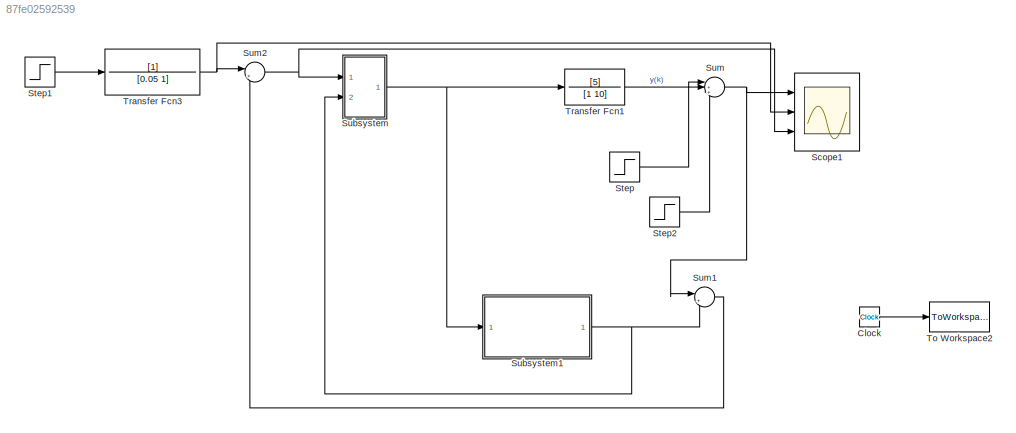
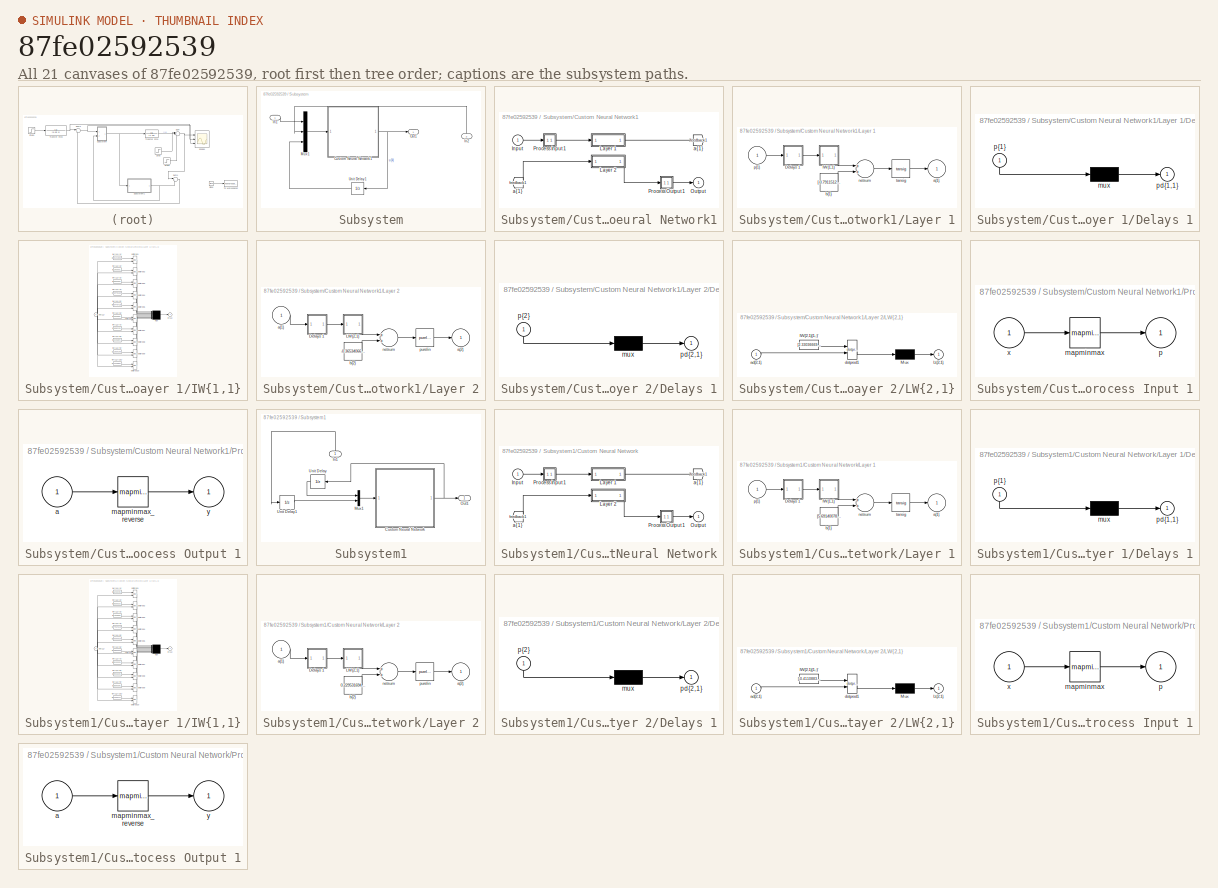
[diagram: thumbnail index - all 21 canvases of the model, root first then tree order]
MODEL slx_87fe02592539
KIND model
CONFIG AbsTol = auto
CONFIG FixedStep = auto
CONFIG MaxStep = auto
CONFIG MinStep = auto
CONFIG RelTol = 1e-3
CONFIG SampleTimeConstraint = Unconstrained
CONFIG Solver = VariableStepAuto
CONFIG SolverMode = Auto
CONFIG SolverName = VariableStepAuto
CONFIG StartTime = 0.0
CONFIG StopTime = 2
BLOCK [Clock] Clock
BLOCK [Scope] Scope1
  NumInputPorts = 3
  Ports = [3]
  ScopeSpecificationString = Simulink.scopes.TimeScopeBlockCfg('CurrentConfiguration', extmgr.ConfigurationSet(extmgr.Configuration('Core','General UI',true),extmgr.Configuration('Core','Source UI',true),extmgr.Configuration('Sources','WiredSimulink',true,'DataLoggingVariableName','ScopeData1'),extmgr.Configuration('Visuals','Time Domain',true,'SerializedDisplays',{struct('MinYLimReal','-0.14376','MaxYLimReal','1.29381','YLab...<+1386ch>
BLOCK [Step] Step
  After = 0.1
  SampleTime = 0
BLOCK [Step] Step1
  SampleTime = 0
  Time = 0
BLOCK [Step] Step2
  After = 0.15
  SampleTime = 0
  Time = 1.5
BLOCK [SubSystem] Subsystem
  Ports = [2, 1]
  RequestExecContextInheritance = off
  Variant = off
BLOCK [SubSystem] Subsystem/Custom Neural Network1
  Ports = [1, 1]
  RequestExecContextInheritance = off
  Variant = off
BLOCK [From] Subsystem/Custom Neural Network1/ a{1} 
  GotoTag = feedback1
BLOCK [Inport] Subsystem/Custom Neural Network1/Input
  IconDisplay = Port number
  PortDimensions = 3
  SampleTime = 0.01
BLOCK [SubSystem] Subsystem/Custom Neural Network1/Layer 1
  Ports = [1, 1]
  RequestExecContextInheritance = off
  Variant = off
BLOCK [SubSystem] Subsystem/Custom Neural Network1/Layer 1/Delays 1
  Ports = [1, 1]
  RequestExecContextInheritance = off
  Variant = off
BLOCK [Mux] Subsystem/Custom Neural Network1/Layer 1/Delays 1/mux
  Inputs = 1
  Ports = [1, 1]
BLOCK [Outport] Subsystem/Custom Neural Network1/Layer 1/Delays 1/pd{1,1}
  IconDisplay = Port number
BLOCK [Inport] Subsystem/Custom Neural Network1/Layer 1/Delays 1/p{1}
  IconDisplay = Port number
  PortDimensions = 3
  SampleTime = 0.01
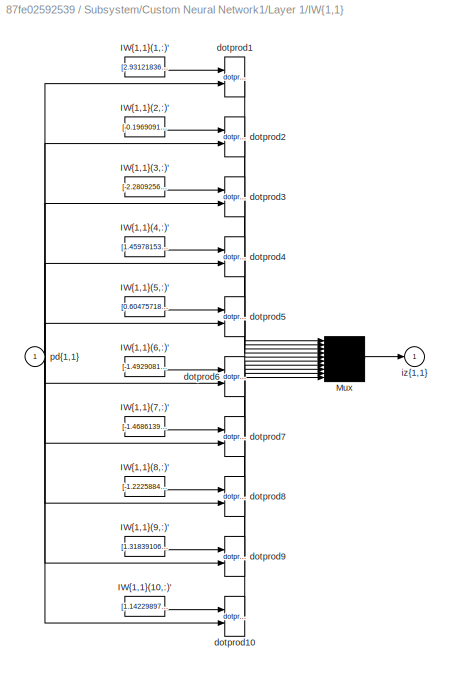
BLOCK [SubSystem] Subsystem/Custom Neural Network1/Layer 1/IW{1,1}
  Ports = [1, 1]
  RequestExecContextInheritance = off
  Variant = off
BLOCK [Constant] Subsystem/Custom Neural Network1/Layer 1/IW{1,1}/IW{1,1}(1,:)'
  Value = [2.9312183687244997;-2.6523224516003663;0.00016887138870012047]
BLOCK [Constant] Subsystem/Custom Neural Network1/Layer 1/IW{1,1}/IW{1,1}(10,:)'
  Value = [1.1422989777888193;1.7281322058882225;-2.0073079651672745]
BLOCK [Constant] Subsystem/Custom Neural Network1/Layer 1/IW{1,1}/IW{1,1}(2,:)'
  Value = [-0.19690918930727488;1.1965621524025662;-2.0941956846009111]
BLOCK [Constant] Subsystem/Custom Neural Network1/Layer 1/IW{1,1}/IW{1,1}(3,:)'
  Value = [-2.2809256082089187;2.0638335102510661;0.00010241684315486009]
BLOCK [Constant] Subsystem/Custom Neural Network1/Layer 1/IW{1,1}/IW{1,1}(4,:)'
  Value = [1.459781531977852;0.41746532694940303;2.3699683866366774]
BLOCK [Constant] Subsystem/Custom Neural Network1/Layer 1/IW{1,1}/IW{1,1}(5,:)'
  Value = [0.60475718569245596;2.1560222526817681;1.6814134608677849]
BLOCK [Constant] Subsystem/Custom Neural Network1/Layer 1/IW{1,1}/IW{1,1}(6,:)'
  Value = [-1.4929081662989734;-2.1219788609396613;1.8487524179333028]
BLOCK [Constant] Subsystem/Custom Neural Network1/Layer 1/IW{1,1}/IW{1,1}(7,:)'
  Value = [-1.4686139931530604;-1.2618973654736712;2.590422913848053]
BLOCK [Constant] Subsystem/Custom Neural Network1/Layer 1/IW{1,1}/IW{1,1}(8,:)'
  Value = [-1.2225884385918298;2.0682740886611004;-0.50820142916595679]
BLOCK [Constant] Subsystem/Custom Neural Network1/Layer 1/IW{1,1}/IW{1,1}(9,:)'
  Value = [1.3183910656045181;-0.059130748089273232;0.28148329812596873]
BLOCK [Mux] Subsystem/Custom Neural Network1/Layer 1/IW{1,1}/Mux
  Inputs = 10
  Ports = [10, 1]
BLOCK [Reference] Subsystem/Custom Neural Network1/Layer 1/IW{1,1}/dotprod1  REF=neural/Weight Functions/dotprod
  Ports = [2, 1]
  SourceBlock = neural/Weight Functions/dotprod
  SourceType = DOTPROD
BLOCK [Reference] Subsystem/Custom Neural Network1/Layer 1/IW{1,1}/dotprod10  REF=neural/Weight Functions/dotprod
  Ports = [2, 1]
  SourceBlock = neural/Weight Functions/dotprod
  SourceType = DOTPROD
BLOCK [Reference] Subsystem/Custom Neural Network1/Layer 1/IW{1,1}/dotprod2  REF=neural/Weight Functions/dotprod
  Ports = [2, 1]
  SourceBlock = neural/Weight Functions/dotprod
  SourceType = DOTPROD
BLOCK [Reference] Subsystem/Custom Neural Network1/Layer 1/IW{1,1}/dotprod3  REF=neural/Weight Functions/dotprod
  Ports = [2, 1]
  SourceBlock = neural/Weight Functions/dotprod
  SourceType = DOTPROD
BLOCK [Reference] Subsystem/Custom Neural Network1/Layer 1/IW{1,1}/dotprod4  REF=neural/Weight Functions/dotprod
  Ports = [2, 1]
  SourceBlock = neural/Weight Functions/dotprod
  SourceType = DOTPROD
BLOCK [Reference] Subsystem/Custom Neural Network1/Layer 1/IW{1,1}/dotprod5  REF=neural/Weight Functions/dotprod
  Ports = [2, 1]
  SourceBlock = neural/Weight Functions/dotprod
  SourceType = DOTPROD
BLOCK [Reference] Subsystem/Custom Neural Network1/Layer 1/IW{1,1}/dotprod6  REF=neural/Weight Functions/dotprod
  Ports = [2, 1]
  SourceBlock = neural/Weight Functions/dotprod
  SourceType = DOTPROD
BLOCK [Reference] Subsystem/Custom Neural Network1/Layer 1/IW{1,1}/dotprod7  REF=neural/Weight Functions/dotprod
  Ports = [2, 1]
  SourceBlock = neural/Weight Functions/dotprod
  SourceType = DOTPROD
BLOCK [Reference] Subsystem/Custom Neural Network1/Layer 1/IW{1,1}/dotprod8  REF=neural/Weight Functions/dotprod
  Ports = [2, 1]
  SourceBlock = neural/Weight Functions/dotprod
  SourceType = DOTPROD
BLOCK [Reference] Subsystem/Custom Neural Network1/Layer 1/IW{1,1}/dotprod9  REF=neural/Weight Functions/dotprod
  Ports = [2, 1]
  SourceBlock = neural/Weight Functions/dotprod
  SourceType = DOTPROD
BLOCK [Outport] Subsystem/Custom Neural Network1/Layer 1/IW{1,1}/iz{1,1}
  IconDisplay = Port number
BLOCK [Inport] Subsystem/Custom Neural Network1/Layer 1/IW{1,1}/pd{1,1}
  IconDisplay = Port number
  PortDimensions = 3
  SampleTime = 0.01
BLOCK [Outport] Subsystem/Custom Neural Network1/Layer 1/a{1}
  IconDisplay = Port number
  InitialOutput = [0;0;0;0;0;0;0;0;0;0]
BLOCK [Constant] Subsystem/Custom Neural Network1/Layer 1/b{1}
  Value = [-0.79115128125811007;-1.9337945836067258;-0.5473650312659869;-1.6269390435302586;0.048897025808087316;0.0514540105732934;-1.1316769452128337;2.197388334475511;1.9746659341742681;2.8967679492991771]
BLOCK [Sum] Subsystem/Custom Neural Network1/Layer 1/netsum
  Inputs = 2
  Ports = [2, 1]
BLOCK [Inport] Subsystem/Custom Neural Network1/Layer 1/p{1}
  IconDisplay = Port number
  PortDimensions = 3
  SampleTime = 0.01
BLOCK [Reference] Subsystem/Custom Neural Network1/Layer 1/tansig  REF=neural/Transfer Functions/tansig
  Ports = [1, 1]
  SourceBlock = neural/Transfer Functions/tansig
  SourceType = TANSIG
BLOCK [SubSystem] Subsystem/Custom Neural Network1/Layer 2
  Ports = [1, 1]
  RequestExecContextInheritance = off
  Variant = off
BLOCK [SubSystem] Subsystem/Custom Neural Network1/Layer 2/Delays 1
  Ports = [1, 1]
  RequestExecContextInheritance = off
  Variant = off
BLOCK [Mux] Subsystem/Custom Neural Network1/Layer 2/Delays 1/mux
  Inputs = 1
  Ports = [1, 1]
BLOCK [Outport] Subsystem/Custom Neural Network1/Layer 2/Delays 1/pd{2,1}
  IconDisplay = Port number
BLOCK [Inport] Subsystem/Custom Neural Network1/Layer 2/Delays 1/p{2}
  IconDisplay = Port number
  PortDimensions = 10
  SampleTime = 0.01
BLOCK [SubSystem] Subsystem/Custom Neural Network1/Layer 2/LW{2,1}
  Ports = [1, 1]
  RequestExecContextInheritance = off
  Variant = off
BLOCK [Constant] Subsystem/Custom Neural Network1/Layer 2/LW{2,1}/IW{2,1}(1,:)'
  Value = [2.3303666965877166;-0.00011010168066328738;-3.8345615339103638;8.2699491761283593e-06;6.7304755977757016e-05;-2.0499242289539555e-05;-0.00017263788153415186;-0.0093235438979685416;0.00053675787748195907;0.00080907691753430661]
BLOCK [Mux] Subsystem/Custom Neural Network1/Layer 2/LW{2,1}/Mux
  Inputs = 1
  Ports = [1, 1]
BLOCK [Inport] Subsystem/Custom Neural Network1/Layer 2/LW{2,1}/ad{2,1}
  IconDisplay = Port number
  PortDimensions = 10
  SampleTime = 0.01
BLOCK [Reference] Subsystem/Custom Neural Network1/Layer 2/LW{2,1}/dotprod1  REF=neural/Weight Functions/dotprod
  Ports = [2, 1]
  SourceBlock = neural/Weight Functions/dotprod
  SourceType = DOTPROD
BLOCK [Outport] Subsystem/Custom Neural Network1/Layer 2/LW{2,1}/lz{2,1}
  IconDisplay = Port number
BLOCK [Inport] Subsystem/Custom Neural Network1/Layer 2/a{1} 
  IconDisplay = Port number
  PortDimensions = 10
  SampleTime = 0.01
BLOCK [Outport] Subsystem/Custom Neural Network1/Layer 2/a{2}
  IconDisplay = Port number
  InitialOutput = 0
BLOCK [Constant] Subsystem/Custom Neural Network1/Layer 2/b{2}
  Value = -0.3653406685777541
BLOCK [Sum] Subsystem/Custom Neural Network1/Layer 2/netsum
  Inputs = 2
  Ports = [2, 1]
BLOCK [Reference] Subsystem/Custom Neural Network1/Layer 2/purelin  REF=neural/Transfer Functions/purelin
  Ports = [1, 1]
  SourceBlock = neural/Transfer Functions/purelin
  SourceType = PURELIN
BLOCK [Outport] Subsystem/Custom Neural Network1/Output
  IconDisplay = Port number
  InitialOutput = 0
BLOCK [SubSystem] Subsystem/Custom Neural Network1/Process Input 1
  Ports = [1, 1]
  RequestExecContextInheritance = off
  Variant = off
BLOCK [Reference] Subsystem/Custom Neural Network1/Process Input 1/mapminmax  REF=neural/Processing Functions/mapminmax
  Ports = [1, 1]
  SourceBlock = neural/Processing Functions/mapminmax
  SourceType = MAPMINMAX Preprocess
BLOCK [Outport] Subsystem/Custom Neural Network1/Process Input 1/p
  IconDisplay = Port number
  PortDimensions = 3
  SampleTime = 0.01
BLOCK [Inport] Subsystem/Custom Neural Network1/Process Input 1/x
  IconDisplay = Port number
  PortDimensions = 3
  SampleTime = 0.01
BLOCK [SubSystem] Subsystem/Custom Neural Network1/Process Output 1
  Ports = [1, 1]
  RequestExecContextInheritance = off
  Variant = off
BLOCK [Inport] Subsystem/Custom Neural Network1/Process Output 1/a
  IconDisplay = Port number
  PortDimensions = 1
  SampleTime = 0.01
BLOCK [Reference] Subsystem/Custom Neural Network1/Process Output 1/mapminmax_reverse  REF=neural/Processing Functions/mapminmax_reverse
  Ports = [1, 1]
  SourceBlock = neural/Processing Functions/mapminmax_reverse
  SourceType = MAPMINMAX Reverse Process
BLOCK [Outport] Subsystem/Custom Neural Network1/Process Output 1/y
  IconDisplay = Port number
  PortDimensions = 1
  SampleTime = 0.01
BLOCK [Goto] Subsystem/Custom Neural Network1/a{1}
  GotoTag = feedback1
BLOCK [Inport] Subsystem/In1
  IconDisplay = Port number
BLOCK [Inport] Subsystem/In2
  IconDisplay = Port number
  Port = 2
BLOCK [Mux] Subsystem/Mux1
  DisplayOption = bar
  Inputs = 3
  Ports = [3, 1]
BLOCK [Outport] Subsystem/Out1
  IconDisplay = Port number
BLOCK [UnitDelay] Subsystem/Unit Delay1
  InputProcessing = Elements as channels (sample based)
  SampleTime = 0.01
BLOCK [SubSystem] Subsystem1
  Ports = [1, 1]
  RequestExecContextInheritance = off
  Variant = off
BLOCK [SubSystem] Subsystem1/Custom Neural Network
  Ports = [1, 1]
  RequestExecContextInheritance = off
  Variant = off
BLOCK [From] Subsystem1/Custom Neural Network/ a{1} 
  GotoTag = feedback1
BLOCK [Inport] Subsystem1/Custom Neural Network/Input
  IconDisplay = Port number
  PortDimensions = 2
  SampleTime = 0.01
BLOCK [SubSystem] Subsystem1/Custom Neural Network/Layer 1
  Ports = [1, 1]
  RequestExecContextInheritance = off
  Variant = off
BLOCK [SubSystem] Subsystem1/Custom Neural Network/Layer 1/Delays 1
  Ports = [1, 1]
  RequestExecContextInheritance = off
  Variant = off
BLOCK [Mux] Subsystem1/Custom Neural Network/Layer 1/Delays 1/mux
  Inputs = 1
  Ports = [1, 1]
BLOCK [Outport] Subsystem1/Custom Neural Network/Layer 1/Delays 1/pd{1,1}
  IconDisplay = Port number
BLOCK [Inport] Subsystem1/Custom Neural Network/Layer 1/Delays 1/p{1}
  IconDisplay = Port number
  PortDimensions = 2
  SampleTime = 0.01
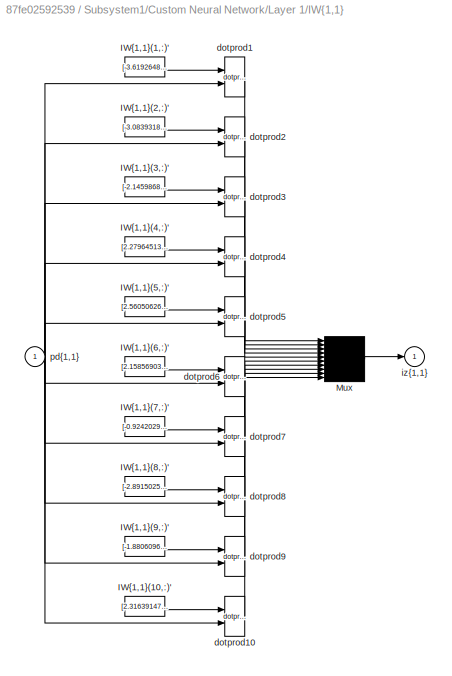
BLOCK [SubSystem] Subsystem1/Custom Neural Network/Layer 1/IW{1,1}
  Ports = [1, 1]
  RequestExecContextInheritance = off
  Variant = off
BLOCK [Constant] Subsystem1/Custom Neural Network/Layer 1/IW{1,1}/IW{1,1}(1,:)'
  Value = [-3.6192648526328948;-0.37925227591307575]
BLOCK [Constant] Subsystem1/Custom Neural Network/Layer 1/IW{1,1}/IW{1,1}(10,:)'
  Value = [2.316391473505885;0.20549533707890807]
BLOCK [Constant] Subsystem1/Custom Neural Network/Layer 1/IW{1,1}/IW{1,1}(2,:)'
  Value = [-3.0839318712497956;-3.2979100307348155]
BLOCK [Constant] Subsystem1/Custom Neural Network/Layer 1/IW{1,1}/IW{1,1}(3,:)'
  Value = [-2.1459868133096105;-0.22399986247240156]
BLOCK [Constant] Subsystem1/Custom Neural Network/Layer 1/IW{1,1}/IW{1,1}(4,:)'
  Value = [2.2796451366028383;0.23851670581771739]
BLOCK [Constant] Subsystem1/Custom Neural Network/Layer 1/IW{1,1}/IW{1,1}(5,:)'
  Value = [2.5605062618193992;0.25985956480889183]
BLOCK [Constant] Subsystem1/Custom Neural Network/Layer 1/IW{1,1}/IW{1,1}(6,:)'
  Value = [2.1585690340746551;3.7857156464579185]
BLOCK [Constant] Subsystem1/Custom Neural Network/Layer 1/IW{1,1}/IW{1,1}(7,:)'
  Value = [-0.92420295254506057;-0.097029704788217624]
BLOCK [Constant] Subsystem1/Custom Neural Network/Layer 1/IW{1,1}/IW{1,1}(8,:)'
  Value = [-2.8915025978063289;-0.19617010246447167]
BLOCK [Constant] Subsystem1/Custom Neural Network/Layer 1/IW{1,1}/IW{1,1}(9,:)'
  Value = [-1.8806096003039952;-3.389900026937787]
BLOCK [Mux] Subsystem1/Custom Neural Network/Layer 1/IW{1,1}/Mux
  Inputs = 10
  Ports = [10, 1]
BLOCK [Reference] Subsystem1/Custom Neural Network/Layer 1/IW{1,1}/dotprod1  REF=neural/Weight Functions/dotprod
  Ports = [2, 1]
  SourceBlock = neural/Weight Functions/dotprod
  SourceType = DOTPROD
BLOCK [Reference] Subsystem1/Custom Neural Network/Layer 1/IW{1,1}/dotprod10  REF=neural/Weight Functions/dotprod
  Ports = [2, 1]
  SourceBlock = neural/Weight Functions/dotprod
  SourceType = DOTPROD
BLOCK [Reference] Subsystem1/Custom Neural Network/Layer 1/IW{1,1}/dotprod2  REF=neural/Weight Functions/dotprod
  Ports = [2, 1]
  SourceBlock = neural/Weight Functions/dotprod
  SourceType = DOTPROD
BLOCK [Reference] Subsystem1/Custom Neural Network/Layer 1/IW{1,1}/dotprod3  REF=neural/Weight Functions/dotprod
  Ports = [2, 1]
  SourceBlock = neural/Weight Functions/dotprod
  SourceType = DOTPROD
BLOCK [Reference] Subsystem1/Custom Neural Network/Layer 1/IW{1,1}/dotprod4  REF=neural/Weight Functions/dotprod
  Ports = [2, 1]
  SourceBlock = neural/Weight Functions/dotprod
  SourceType = DOTPROD
BLOCK [Reference] Subsystem1/Custom Neural Network/Layer 1/IW{1,1}/dotprod5  REF=neural/Weight Functions/dotprod
  Ports = [2, 1]
  SourceBlock = neural/Weight Functions/dotprod
  SourceType = DOTPROD
BLOCK [Reference] Subsystem1/Custom Neural Network/Layer 1/IW{1,1}/dotprod6  REF=neural/Weight Functions/dotprod
  Ports = [2, 1]
  SourceBlock = neural/Weight Functions/dotprod
  SourceType = DOTPROD
BLOCK [Reference] Subsystem1/Custom Neural Network/Layer 1/IW{1,1}/dotprod7  REF=neural/Weight Functions/dotprod
  Ports = [2, 1]
  SourceBlock = neural/Weight Functions/dotprod
  SourceType = DOTPROD
BLOCK [Reference] Subsystem1/Custom Neural Network/Layer 1/IW{1,1}/dotprod8  REF=neural/Weight Functions/dotprod
  Ports = [2, 1]
  SourceBlock = neural/Weight Functions/dotprod
  SourceType = DOTPROD
BLOCK [Reference] Subsystem1/Custom Neural Network/Layer 1/IW{1,1}/dotprod9  REF=neural/Weight Functions/dotprod
  Ports = [2, 1]
  SourceBlock = neural/Weight Functions/dotprod
  SourceType = DOTPROD
BLOCK [Outport] Subsystem1/Custom Neural Network/Layer 1/IW{1,1}/iz{1,1}
  IconDisplay = Port number
BLOCK [Inport] Subsystem1/Custom Neural Network/Layer 1/IW{1,1}/pd{1,1}
  IconDisplay = Port number
  PortDimensions = 2
  SampleTime = 0.01
BLOCK [Outport] Subsystem1/Custom Neural Network/Layer 1/a{1}
  IconDisplay = Port number
  InitialOutput = [0;0;0;0;0;0;0;0;0;0]
BLOCK [Constant] Subsystem1/Custom Neural Network/Layer 1/b{1}
  Value = [5.691400783884184;2.7219564728221632;2.1513369421395523;-1.145587052007375;-0.24942832781060961;0.1544700987498471;-0.39269443053620878;-3.1146615983151418;-3.7696401998194138;2.72839872120751]
BLOCK [Sum] Subsystem1/Custom Neural Network/Layer 1/netsum
  Inputs = 2
  Ports = [2, 1]
BLOCK [Inport] Subsystem1/Custom Neural Network/Layer 1/p{1}
  IconDisplay = Port number
  PortDimensions = 2
  SampleTime = 0.01
BLOCK [Reference] Subsystem1/Custom Neural Network/Layer 1/tansig  REF=neural/Transfer Functions/tansig
  Ports = [1, 1]
  SourceBlock = neural/Transfer Functions/tansig
  SourceType = TANSIG
BLOCK [SubSystem] Subsystem1/Custom Neural Network/Layer 2
  Ports = [1, 1]
  RequestExecContextInheritance = off
  Variant = off
BLOCK [SubSystem] Subsystem1/Custom Neural Network/Layer 2/Delays 1
  Ports = [1, 1]
  RequestExecContextInheritance = off
  Variant = off
BLOCK [Mux] Subsystem1/Custom Neural Network/Layer 2/Delays 1/mux
  Inputs = 1
  Ports = [1, 1]
BLOCK [Outport] Subsystem1/Custom Neural Network/Layer 2/Delays 1/pd{2,1}
  IconDisplay = Port number
BLOCK [Inport] Subsystem1/Custom Neural Network/Layer 2/Delays 1/p{2}
  IconDisplay = Port number
  PortDimensions = 10
  SampleTime = 0.01
BLOCK [SubSystem] Subsystem1/Custom Neural Network/Layer 2/LW{2,1}
  Ports = [1, 1]
  RequestExecContextInheritance = off
  Variant = off
BLOCK [Constant] Subsystem1/Custom Neural Network/Layer 2/LW{2,1}/IW{2,1}(1,:)'
  Value = [-0.41108831103007831;5.2872219865442928e-05;-0.24556108142863128;0.11045092820558752;0.034599533846436388;-2.529306261156968e-05;-0.89843443963461944;0.070528489940660383;-7.9210266637310059e-05;0.24336435445569091]
BLOCK [Mux] Subsystem1/Custom Neural Network/Layer 2/LW{2,1}/Mux
  Inputs = 1
  Ports = [1, 1]
BLOCK [Inport] Subsystem1/Custom Neural Network/Layer 2/LW{2,1}/ad{2,1}
  IconDisplay = Port number
  PortDimensions = 10
  SampleTime = 0.01
BLOCK [Reference] Subsystem1/Custom Neural Network/Layer 2/LW{2,1}/dotprod1  REF=neural/Weight Functions/dotprod
  Ports = [2, 1]
  SourceBlock = neural/Weight Functions/dotprod
  SourceType = DOTPROD
BLOCK [Outport] Subsystem1/Custom Neural Network/Layer 2/LW{2,1}/lz{2,1}
  IconDisplay = Port number
BLOCK [Inport] Subsystem1/Custom Neural Network/Layer 2/a{1} 
  IconDisplay = Port number
  PortDimensions = 10
  SampleTime = 0.01
BLOCK [Outport] Subsystem1/Custom Neural Network/Layer 2/a{2}
  IconDisplay = Port number
  InitialOutput = 0
BLOCK [Constant] Subsystem1/Custom Neural Network/Layer 2/b{2}
  Value = 0.22953169479787197
BLOCK [Sum] Subsystem1/Custom Neural Network/Layer 2/netsum
  Inputs = 2
  Ports = [2, 1]
BLOCK [Reference] Subsystem1/Custom Neural Network/Layer 2/purelin  REF=neural/Transfer Functions/purelin
  Ports = [1, 1]
  SourceBlock = neural/Transfer Functions/purelin
  SourceType = PURELIN
BLOCK [Outport] Subsystem1/Custom Neural Network/Output
  IconDisplay = Port number
  InitialOutput = 0
BLOCK [SubSystem] Subsystem1/Custom Neural Network/Process Input 1
  Ports = [1, 1]
  RequestExecContextInheritance = off
  Variant = off
BLOCK [Reference] Subsystem1/Custom Neural Network/Process Input 1/mapminmax  REF=neural/Processing Functions/mapminmax
  Ports = [1, 1]
  SourceBlock = neural/Processing Functions/mapminmax
  SourceType = MAPMINMAX Preprocess
BLOCK [Outport] Subsystem1/Custom Neural Network/Process Input 1/p
  IconDisplay = Port number
  PortDimensions = 2
  SampleTime = 0.01
BLOCK [Inport] Subsystem1/Custom Neural Network/Process Input 1/x
  IconDisplay = Port number
  PortDimensions = 2
  SampleTime = 0.01
BLOCK [SubSystem] Subsystem1/Custom Neural Network/Process Output 1
  Ports = [1, 1]
  RequestExecContextInheritance = off
  Variant = off
BLOCK [Inport] Subsystem1/Custom Neural Network/Process Output 1/a
  IconDisplay = Port number
  PortDimensions = 1
  SampleTime = 0.01
BLOCK [Reference] Subsystem1/Custom Neural Network/Process Output 1/mapminmax_reverse  REF=neural/Processing Functions/mapminmax_reverse
  Ports = [1, 1]
  SourceBlock = neural/Processing Functions/mapminmax_reverse
  SourceType = MAPMINMAX Reverse Process
BLOCK [Outport] Subsystem1/Custom Neural Network/Process Output 1/y
  IconDisplay = Port number
  PortDimensions = 1
  SampleTime = 0.01
BLOCK [Goto] Subsystem1/Custom Neural Network/a{1}
  GotoTag = feedback1
BLOCK [Inport] Subsystem1/In1
  IconDisplay = Port number
BLOCK [Mux] Subsystem1/Mux1
  DisplayOption = bar
  Inputs = 2
  Ports = [2, 1]
BLOCK [Outport] Subsystem1/Out1
  IconDisplay = Port number
BLOCK [UnitDelay] Subsystem1/Unit Delay
  InputProcessing = Elements as channels (sample based)
  SampleTime = 0.01
BLOCK [UnitDelay] Subsystem1/Unit Delay1
  InputProcessing = Elements as channels (sample based)
  SampleTime = 0.01
BLOCK [Sum] Sum
  IconShape = round
  InputSameDT = off
  Inputs = |+++
  OutDataTypeStr = Inherit: Inherit via internal rule
  Ports = [3, 1]
  SaturateOnIntegerOverflow = off
BLOCK [Sum] Sum1
  IconShape = round
  InputSameDT = off
  Inputs = |+-
  OutDataTypeStr = Inherit: Inherit via internal rule
  Ports = [2, 1]
  SaturateOnIntegerOverflow = off
BLOCK [Sum] Sum2
  IconShape = round
  InputSameDT = off
  Inputs = |+-
  OutDataTypeStr = Inherit: Inherit via internal rule
  Ports = [2, 1]
  SaturateOnIntegerOverflow = off
BLOCK [ToWorkspace] To Workspace2
  FixptAsFi = on
  MaxDataPoints = inf
  Ports = [1]
  SampleTime = 0.01
  Save2DSignal = 3-D array (concatenate along third dimension)
  VariableName = Tiempo
BLOCK [TransferFcn] Transfer Fcn1
  Denominator = [1 10]
  Numerator = [5]
BLOCK [TransferFcn] Transfer Fcn3
  Denominator = [0.05 1]
LINE Clock:1 -> To Workspace2:1
LINE Step1:1 -> Transfer Fcn3:1
LINE Step2:1 -> Sum:3
LINE Step:1 -> Sum:2
LINE Subsystem/Custom Neural Network1/ a{1} :1 -> Subsystem/Custom Neural Network1/Layer 2:1
LINE Subsystem/Custom Neural Network1/Input:1 -> Subsystem/Custom Neural Network1/Process Input 1:1
LINE Subsystem/Custom Neural Network1/Layer 1/Delays 1/mux:1 -> Subsystem/Custom Neural Network1/Layer 1/Delays 1/pd{1,1}:1
LINE Subsystem/Custom Neural Network1/Layer 1/Delays 1/p{1}:1 -> Subsystem/Custom Neural Network1/Layer 1/Delays 1/mux:1
LINE Subsystem/Custom Neural Network1/Layer 1/Delays 1:1 -> Subsystem/Custom Neural Network1/Layer 1/IW{1,1}:1
LINE Subsystem/Custom Neural Network1/Layer 1/IW{1,1}/IW{1,1}(1,:)':1 -> Subsystem/Custom Neural Network1/Layer 1/IW{1,1}/dotprod1:1
LINE Subsystem/Custom Neural Network1/Layer 1/IW{1,1}/IW{1,1}(10,:)':1 -> Subsystem/Custom Neural Network1/Layer 1/IW{1,1}/dotprod10:1
LINE Subsystem/Custom Neural Network1/Layer 1/IW{1,1}/IW{1,1}(2,:)':1 -> Subsystem/Custom Neural Network1/Layer 1/IW{1,1}/dotprod2:1
LINE Subsystem/Custom Neural Network1/Layer 1/IW{1,1}/IW{1,1}(3,:)':1 -> Subsystem/Custom Neural Network1/Layer 1/IW{1,1}/dotprod3:1
LINE Subsystem/Custom Neural Network1/Layer 1/IW{1,1}/IW{1,1}(4,:)':1 -> Subsystem/Custom Neural Network1/Layer 1/IW{1,1}/dotprod4:1
LINE Subsystem/Custom Neural Network1/Layer 1/IW{1,1}/IW{1,1}(5,:)':1 -> Subsystem/Custom Neural Network1/Layer 1/IW{1,1}/dotprod5:1
LINE Subsystem/Custom Neural Network1/Layer 1/IW{1,1}/IW{1,1}(6,:)':1 -> Subsystem/Custom Neural Network1/Layer 1/IW{1,1}/dotprod6:1
LINE Subsystem/Custom Neural Network1/Layer 1/IW{1,1}/IW{1,1}(7,:)':1 -> Subsystem/Custom Neural Network1/Layer 1/IW{1,1}/dotprod7:1
LINE Subsystem/Custom Neural Network1/Layer 1/IW{1,1}/IW{1,1}(8,:)':1 -> Subsystem/Custom Neural Network1/Layer 1/IW{1,1}/dotprod8:1
LINE Subsystem/Custom Neural Network1/Layer 1/IW{1,1}/IW{1,1}(9,:)':1 -> Subsystem/Custom Neural Network1/Layer 1/IW{1,1}/dotprod9:1
LINE Subsystem/Custom Neural Network1/Layer 1/IW{1,1}/Mux:1 -> Subsystem/Custom Neural Network1/Layer 1/IW{1,1}/iz{1,1}:1
LINE Subsystem/Custom Neural Network1/Layer 1/IW{1,1}/dotprod10:1 -> Subsystem/Custom Neural Network1/Layer 1/IW{1,1}/Mux:10
LINE Subsystem/Custom Neural Network1/Layer 1/IW{1,1}/dotprod1:1 -> Subsystem/Custom Neural Network1/Layer 1/IW{1,1}/Mux:1
LINE Subsystem/Custom Neural Network1/Layer 1/IW{1,1}/dotprod2:1 -> Subsystem/Custom Neural Network1/Layer 1/IW{1,1}/Mux:2
LINE Subsystem/Custom Neural Network1/Layer 1/IW{1,1}/dotprod3:1 -> Subsystem/Custom Neural Network1/Layer 1/IW{1,1}/Mux:3
LINE Subsystem/Custom Neural Network1/Layer 1/IW{1,1}/dotprod4:1 -> Subsystem/Custom Neural Network1/Layer 1/IW{1,1}/Mux:4
LINE Subsystem/Custom Neural Network1/Layer 1/IW{1,1}/dotprod5:1 -> Subsystem/Custom Neural Network1/Layer 1/IW{1,1}/Mux:5
LINE Subsystem/Custom Neural Network1/Layer 1/IW{1,1}/dotprod6:1 -> Subsystem/Custom Neural Network1/Layer 1/IW{1,1}/Mux:6
LINE Subsystem/Custom Neural Network1/Layer 1/IW{1,1}/dotprod7:1 -> Subsystem/Custom Neural Network1/Layer 1/IW{1,1}/Mux:7
LINE Subsystem/Custom Neural Network1/Layer 1/IW{1,1}/dotprod8:1 -> Subsystem/Custom Neural Network1/Layer 1/IW{1,1}/Mux:8
LINE Subsystem/Custom Neural Network1/Layer 1/IW{1,1}/dotprod9:1 -> Subsystem/Custom Neural Network1/Layer 1/IW{1,1}/Mux:9
NET Subsystem/Custom Neural Network1/Layer 1/IW{1,1}/pd{1,1}:1 -> Subsystem/Custom Neural Network1/Layer 1/IW{1,1}/dotprod10:2, Subsystem/Custom Neural Network1/Layer 1/IW{1,1}/dotprod1:2, Subsystem/Custom Neural Network1/Layer 1/IW{1,1}/dotprod2:2, Subsystem/Custom Neural Network1/Layer 1/IW{1,1}/dotprod3:2, Subsystem/Custom Neural Network1/Layer 1/IW{1,1}/dotprod4:2, Subsystem/Custom Neural Network1/Layer 1/IW{1,1}/dotprod5:2, Subsystem/Custom Neural Network1/Layer 1/IW{1,1}/dotprod6:2, Subsystem/Custom Neural Network1/Layer 1/IW{1,1}/dotprod7:2, Subsystem/Custom Neural Network1/Layer 1/IW{1,1}/dotprod8:2, Subsystem/Custom Neural Network1/Layer 1/IW{1,1}/dotprod9:2
LINE Subsystem/Custom Neural Network1/Layer 1/IW{1,1}:1 -> Subsystem/Custom Neural Network1/Layer 1/netsum:1
LINE Subsystem/Custom Neural Network1/Layer 1/b{1}:1 -> Subsystem/Custom Neural Network1/Layer 1/netsum:2
LINE Subsystem/Custom Neural Network1/Layer 1/netsum:1 -> Subsystem/Custom Neural Network1/Layer 1/tansig:1
LINE Subsystem/Custom Neural Network1/Layer 1/p{1}:1 -> Subsystem/Custom Neural Network1/Layer 1/Delays 1:1
LINE Subsystem/Custom Neural Network1/Layer 1/tansig:1 -> Subsystem/Custom Neural Network1/Layer 1/a{1}:1
LINE Subsystem/Custom Neural Network1/Layer 1:1 -> Subsystem/Custom Neural Network1/a{1}:1
LINE Subsystem/Custom Neural Network1/Layer 2/Delays 1/mux:1 -> Subsystem/Custom Neural Network1/Layer 2/Delays 1/pd{2,1}:1
LINE Subsystem/Custom Neural Network1/Layer 2/Delays 1/p{2}:1 -> Subsystem/Custom Neural Network1/Layer 2/Delays 1/mux:1
LINE Subsystem/Custom Neural Network1/Layer 2/Delays 1:1 -> Subsystem/Custom Neural Network1/Layer 2/LW{2,1}:1
LINE Subsystem/Custom Neural Network1/Layer 2/LW{2,1}/IW{2,1}(1,:)':1 -> Subsystem/Custom Neural Network1/Layer 2/LW{2,1}/dotprod1:1
LINE Subsystem/Custom Neural Network1/Layer 2/LW{2,1}/Mux:1 -> Subsystem/Custom Neural Network1/Layer 2/LW{2,1}/lz{2,1}:1
LINE Subsystem/Custom Neural Network1/Layer 2/LW{2,1}/ad{2,1}:1 -> Subsystem/Custom Neural Network1/Layer 2/LW{2,1}/dotprod1:2
LINE Subsystem/Custom Neural Network1/Layer 2/LW{2,1}/dotprod1:1 -> Subsystem/Custom Neural Network1/Layer 2/LW{2,1}/Mux:1
LINE Subsystem/Custom Neural Network1/Layer 2/LW{2,1}:1 -> Subsystem/Custom Neural Network1/Layer 2/netsum:1
LINE Subsystem/Custom Neural Network1/Layer 2/a{1} :1 -> Subsystem/Custom Neural Network1/Layer 2/Delays 1:1
LINE Subsystem/Custom Neural Network1/Layer 2/b{2}:1 -> Subsystem/Custom Neural Network1/Layer 2/netsum:2
LINE Subsystem/Custom Neural Network1/Layer 2/netsum:1 -> Subsystem/Custom Neural Network1/Layer 2/purelin:1
LINE Subsystem/Custom Neural Network1/Layer 2/purelin:1 -> Subsystem/Custom Neural Network1/Layer 2/a{2}:1
LINE Subsystem/Custom Neural Network1/Layer 2:1 -> Subsystem/Custom Neural Network1/Process Output 1:1
LINE Subsystem/Custom Neural Network1/Process Input 1/mapminmax:1 -> Subsystem/Custom Neural Network1/Process Input 1/p:1
LINE Subsystem/Custom Neural Network1/Process Input 1/x:1 -> Subsystem/Custom Neural Network1/Process Input 1/mapminmax:1
LINE Subsystem/Custom Neural Network1/Process Input 1:1 -> Subsystem/Custom Neural Network1/Layer 1:1
LINE Subsystem/Custom Neural Network1/Process Output 1/a:1 -> Subsystem/Custom Neural Network1/Process Output 1/mapminmax_reverse:1
LINE Subsystem/Custom Neural Network1/Process Output 1/mapminmax_reverse:1 -> Subsystem/Custom Neural Network1/Process Output 1/y:1
LINE Subsystem/Custom Neural Network1/Process Output 1:1 -> Subsystem/Custom Neural Network1/Output:1
NET Subsystem/Custom Neural Network1:1 -> Subsystem/Out1:1, Subsystem/Unit Delay1:1
LINE Subsystem/In1:1 -> Subsystem/Mux1:1
LINE Subsystem/In2:1 -> Subsystem/Mux1:2
LINE Subsystem/Mux1:1 -> Subsystem/Custom Neural Network1:1
LINE Subsystem/Unit Delay1:1 -> Subsystem/Mux1:3
LINE Subsystem1/Custom Neural Network/ a{1} :1 -> Subsystem1/Custom Neural Network/Layer 2:1
LINE Subsystem1/Custom Neural Network/Input:1 -> Subsystem1/Custom Neural Network/Process Input 1:1
LINE Subsystem1/Custom Neural Network/Layer 1/Delays 1/mux:1 -> Subsystem1/Custom Neural Network/Layer 1/Delays 1/pd{1,1}:1
LINE Subsystem1/Custom Neural Network/Layer 1/Delays 1/p{1}:1 -> Subsystem1/Custom Neural Network/Layer 1/Delays 1/mux:1
LINE Subsystem1/Custom Neural Network/Layer 1/Delays 1:1 -> Subsystem1/Custom Neural Network/Layer 1/IW{1,1}:1
LINE Subsystem1/Custom Neural Network/Layer 1/IW{1,1}/IW{1,1}(1,:)':1 -> Subsystem1/Custom Neural Network/Layer 1/IW{1,1}/dotprod1:1
LINE Subsystem1/Custom Neural Network/Layer 1/IW{1,1}/IW{1,1}(10,:)':1 -> Subsystem1/Custom Neural Network/Layer 1/IW{1,1}/dotprod10:1
LINE Subsystem1/Custom Neural Network/Layer 1/IW{1,1}/IW{1,1}(2,:)':1 -> Subsystem1/Custom Neural Network/Layer 1/IW{1,1}/dotprod2:1
LINE Subsystem1/Custom Neural Network/Layer 1/IW{1,1}/IW{1,1}(3,:)':1 -> Subsystem1/Custom Neural Network/Layer 1/IW{1,1}/dotprod3:1
LINE Subsystem1/Custom Neural Network/Layer 1/IW{1,1}/IW{1,1}(4,:)':1 -> Subsystem1/Custom Neural Network/Layer 1/IW{1,1}/dotprod4:1
LINE Subsystem1/Custom Neural Network/Layer 1/IW{1,1}/IW{1,1}(5,:)':1 -> Subsystem1/Custom Neural Network/Layer 1/IW{1,1}/dotprod5:1
LINE Subsystem1/Custom Neural Network/Layer 1/IW{1,1}/IW{1,1}(6,:)':1 -> Subsystem1/Custom Neural Network/Layer 1/IW{1,1}/dotprod6:1
LINE Subsystem1/Custom Neural Network/Layer 1/IW{1,1}/IW{1,1}(7,:)':1 -> Subsystem1/Custom Neural Network/Layer 1/IW{1,1}/dotprod7:1
LINE Subsystem1/Custom Neural Network/Layer 1/IW{1,1}/IW{1,1}(8,:)':1 -> Subsystem1/Custom Neural Network/Layer 1/IW{1,1}/dotprod8:1
LINE Subsystem1/Custom Neural Network/Layer 1/IW{1,1}/IW{1,1}(9,:)':1 -> Subsystem1/Custom Neural Network/Layer 1/IW{1,1}/dotprod9:1
LINE Subsystem1/Custom Neural Network/Layer 1/IW{1,1}/Mux:1 -> Subsystem1/Custom Neural Network/Layer 1/IW{1,1}/iz{1,1}:1
LINE Subsystem1/Custom Neural Network/Layer 1/IW{1,1}/dotprod10:1 -> Subsystem1/Custom Neural Network/Layer 1/IW{1,1}/Mux:10
LINE Subsystem1/Custom Neural Network/Layer 1/IW{1,1}/dotprod1:1 -> Subsystem1/Custom Neural Network/Layer 1/IW{1,1}/Mux:1
LINE Subsystem1/Custom Neural Network/Layer 1/IW{1,1}/dotprod2:1 -> Subsystem1/Custom Neural Network/Layer 1/IW{1,1}/Mux:2
LINE Subsystem1/Custom Neural Network/Layer 1/IW{1,1}/dotprod3:1 -> Subsystem1/Custom Neural Network/Layer 1/IW{1,1}/Mux:3
LINE Subsystem1/Custom Neural Network/Layer 1/IW{1,1}/dotprod4:1 -> Subsystem1/Custom Neural Network/Layer 1/IW{1,1}/Mux:4
LINE Subsystem1/Custom Neural Network/Layer 1/IW{1,1}/dotprod5:1 -> Subsystem1/Custom Neural Network/Layer 1/IW{1,1}/Mux:5
LINE Subsystem1/Custom Neural Network/Layer 1/IW{1,1}/dotprod6:1 -> Subsystem1/Custom Neural Network/Layer 1/IW{1,1}/Mux:6
LINE Subsystem1/Custom Neural Network/Layer 1/IW{1,1}/dotprod7:1 -> Subsystem1/Custom Neural Network/Layer 1/IW{1,1}/Mux:7
LINE Subsystem1/Custom Neural Network/Layer 1/IW{1,1}/dotprod8:1 -> Subsystem1/Custom Neural Network/Layer 1/IW{1,1}/Mux:8
LINE Subsystem1/Custom Neural Network/Layer 1/IW{1,1}/dotprod9:1 -> Subsystem1/Custom Neural Network/Layer 1/IW{1,1}/Mux:9
NET Subsystem1/Custom Neural Network/Layer 1/IW{1,1}/pd{1,1}:1 -> Subsystem1/Custom Neural Network/Layer 1/IW{1,1}/dotprod10:2, Subsystem1/Custom Neural Network/Layer 1/IW{1,1}/dotprod1:2, Subsystem1/Custom Neural Network/Layer 1/IW{1,1}/dotprod2:2, Subsystem1/Custom Neural Network/Layer 1/IW{1,1}/dotprod3:2, Subsystem1/Custom Neural Network/Layer 1/IW{1,1}/dotprod4:2, Subsystem1/Custom Neural Network/Layer 1/IW{1,1}/dotprod5:2, Subsystem1/Custom Neural Network/Layer 1/IW{1,1}/dotprod6:2, Subsystem1/Custom Neural Network/Layer 1/IW{1,1}/dotprod7:2, Subsystem1/Custom Neural Network/Layer 1/IW{1,1}/dotprod8:2, Subsystem1/Custom Neural Network/Layer 1/IW{1,1}/dotprod9:2
LINE Subsystem1/Custom Neural Network/Layer 1/IW{1,1}:1 -> Subsystem1/Custom Neural Network/Layer 1/netsum:1
LINE Subsystem1/Custom Neural Network/Layer 1/b{1}:1 -> Subsystem1/Custom Neural Network/Layer 1/netsum:2
LINE Subsystem1/Custom Neural Network/Layer 1/netsum:1 -> Subsystem1/Custom Neural Network/Layer 1/tansig:1
LINE Subsystem1/Custom Neural Network/Layer 1/p{1}:1 -> Subsystem1/Custom Neural Network/Layer 1/Delays 1:1
LINE Subsystem1/Custom Neural Network/Layer 1/tansig:1 -> Subsystem1/Custom Neural Network/Layer 1/a{1}:1
LINE Subsystem1/Custom Neural Network/Layer 1:1 -> Subsystem1/Custom Neural Network/a{1}:1
LINE Subsystem1/Custom Neural Network/Layer 2/Delays 1/mux:1 -> Subsystem1/Custom Neural Network/Layer 2/Delays 1/pd{2,1}:1
LINE Subsystem1/Custom Neural Network/Layer 2/Delays 1/p{2}:1 -> Subsystem1/Custom Neural Network/Layer 2/Delays 1/mux:1
LINE Subsystem1/Custom Neural Network/Layer 2/Delays 1:1 -> Subsystem1/Custom Neural Network/Layer 2/LW{2,1}:1
LINE Subsystem1/Custom Neural Network/Layer 2/LW{2,1}/IW{2,1}(1,:)':1 -> Subsystem1/Custom Neural Network/Layer 2/LW{2,1}/dotprod1:1
LINE Subsystem1/Custom Neural Network/Layer 2/LW{2,1}/Mux:1 -> Subsystem1/Custom Neural Network/Layer 2/LW{2,1}/lz{2,1}:1
LINE Subsystem1/Custom Neural Network/Layer 2/LW{2,1}/ad{2,1}:1 -> Subsystem1/Custom Neural Network/Layer 2/LW{2,1}/dotprod1:2
LINE Subsystem1/Custom Neural Network/Layer 2/LW{2,1}/dotprod1:1 -> Subsystem1/Custom Neural Network/Layer 2/LW{2,1}/Mux:1
LINE Subsystem1/Custom Neural Network/Layer 2/LW{2,1}:1 -> Subsystem1/Custom Neural Network/Layer 2/netsum:1
LINE Subsystem1/Custom Neural Network/Layer 2/a{1} :1 -> Subsystem1/Custom Neural Network/Layer 2/Delays 1:1
LINE Subsystem1/Custom Neural Network/Layer 2/b{2}:1 -> Subsystem1/Custom Neural Network/Layer 2/netsum:2
LINE Subsystem1/Custom Neural Network/Layer 2/netsum:1 -> Subsystem1/Custom Neural Network/Layer 2/purelin:1
LINE Subsystem1/Custom Neural Network/Layer 2/purelin:1 -> Subsystem1/Custom Neural Network/Layer 2/a{2}:1
LINE Subsystem1/Custom Neural Network/Layer 2:1 -> Subsystem1/Custom Neural Network/Process Output 1:1
LINE Subsystem1/Custom Neural Network/Process Input 1/mapminmax:1 -> Subsystem1/Custom Neural Network/Process Input 1/p:1
LINE Subsystem1/Custom Neural Network/Process Input 1/x:1 -> Subsystem1/Custom Neural Network/Process Input 1/mapminmax:1
LINE Subsystem1/Custom Neural Network/Process Input 1:1 -> Subsystem1/Custom Neural Network/Layer 1:1
LINE Subsystem1/Custom Neural Network/Process Output 1/a:1 -> Subsystem1/Custom Neural Network/Process Output 1/mapminmax_reverse:1
LINE Subsystem1/Custom Neural Network/Process Output 1/mapminmax_reverse:1 -> Subsystem1/Custom Neural Network/Process Output 1/y:1
LINE Subsystem1/Custom Neural Network/Process Output 1:1 -> Subsystem1/Custom Neural Network/Output:1
NET Subsystem1/Custom Neural Network:1 -> Subsystem1/Out1:1, Subsystem1/Unit Delay:1
LINE Subsystem1/In1:1 -> Subsystem1/Unit Delay1:1
LINE Subsystem1/Mux1:1 -> Subsystem1/Custom Neural Network:1
LINE Subsystem1/Unit Delay1:1 -> Subsystem1/Mux1:2
LINE Subsystem1/Unit Delay:1 -> Subsystem1/Mux1:1
NET Subsystem1:1 -> Subsystem:2, Sum1:2
NET Subsystem:1 -> Subsystem1:1, Transfer Fcn1:1
LINE Sum1:1 -> Sum2:2
NET Sum2:1 -> Scope1:3, Subsystem:1
NET Sum:1 -> Scope1:1, Sum1:1
LINE Transfer Fcn1:1 -> Sum:1
NET Transfer Fcn3:1 -> Scope1:2, Sum2:1
note: NET lines group one-source signal fan-out (src -> all destinations, sorted); 1:1 wires keep LINE
